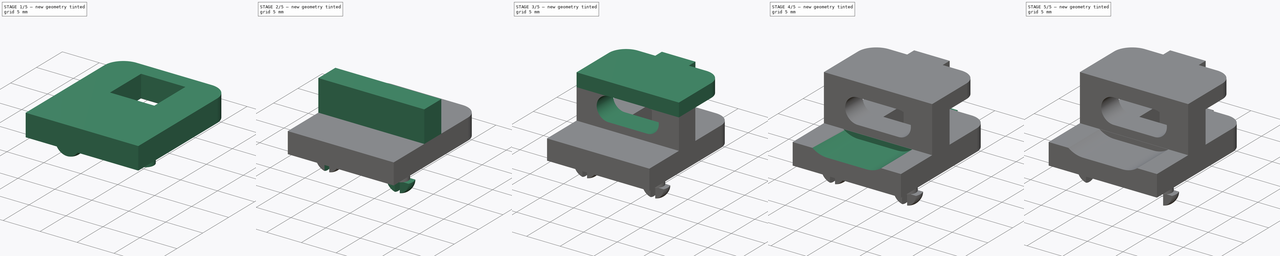
[diagram: build sequence overview — one tinted view per stage of 5, left to right]
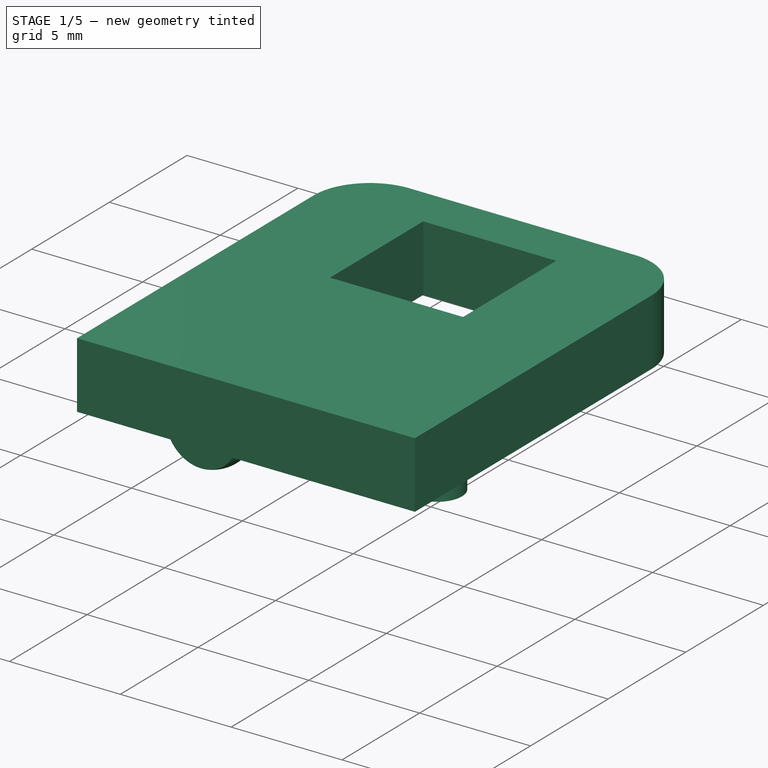
[diagram: stage 1 of 5 — iso view after this stage's code; geometry added in this stage tinted green]
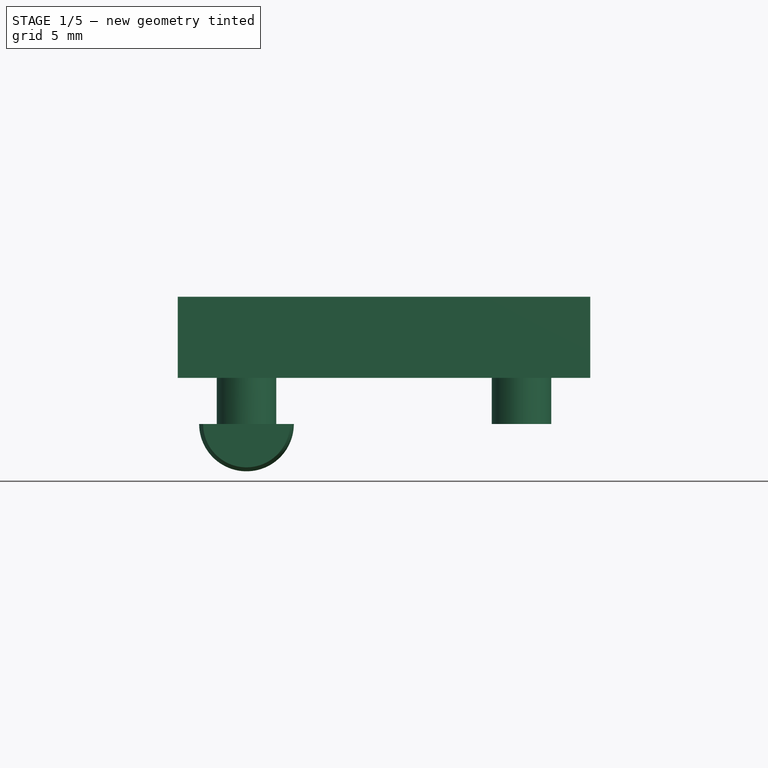
[diagram: stage 1 of 5 — front view after this stage's code; geometry added in this stage tinted green]
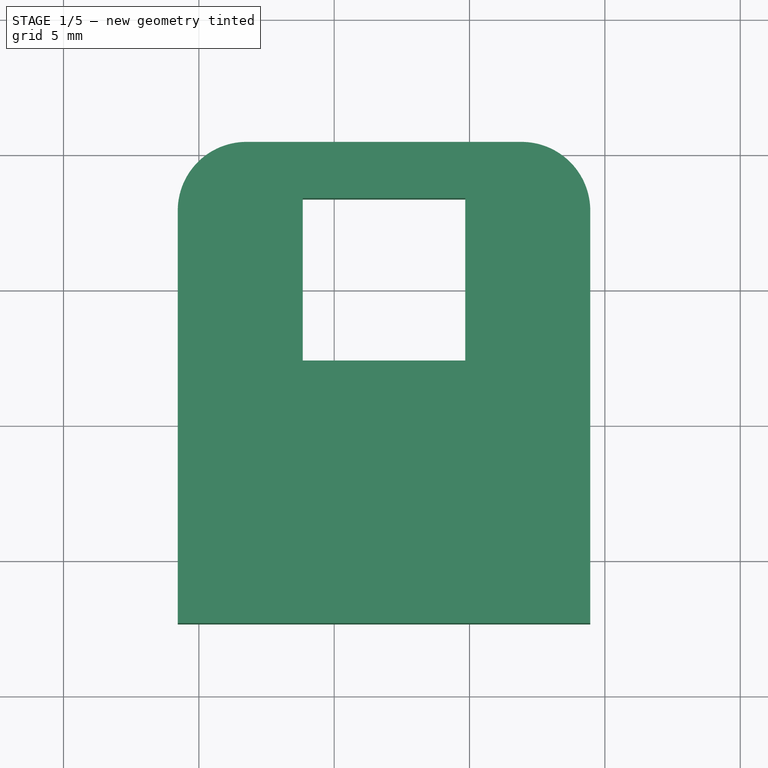
[diagram: stage 1 of 5 — top view after this stage's code; geometry added in this stage tinted green]
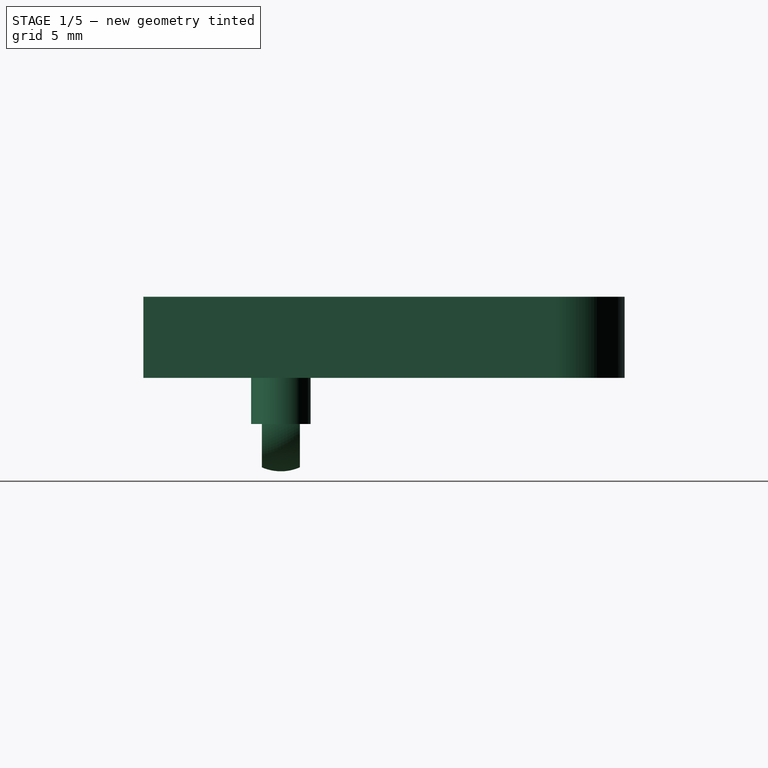
[diagram: stage 1 of 5 — right view after this stage's code; geometry added in this stage tinted green]
FCSTD DOCUMENT  (FreeCAD 0.21RUnknown)
Label: seeeduino_jig
License: All rights reserved
LicenseURL: https://en.wikipedia.org/wiki/All_rights_reserved
objects: Sketcher::SketchObject×13, PartDesign::Pad×7, PartDesign::Pocket×4, PartDesign::Revolution×2, PartDesign::Chamfer×2, Part::Feature×1, App::Part×1, PartDesign::ShapeBinder×1, PartDesign::Body×1
note: 46 computed .brp shape members not serialized (recipe doc carries the construction recipe); baked Part::Feature solids carry a one-line shape summary decoded from their .brp

FEATURE [Part::Feature] Part__Feature  label="seeeduino_debugging_jig_PCB"
  shape: bbox 15.24 x 25.4 x 1.6 mm, 16 faces (baked)
FEATURE [App::Part] seeeduino_debugging_jig_1  label="seeeduino_debugging_jig 1"
  Group = -> [Part__Feature]
  Origin = -> Origin001
FEATURE [PartDesign::ShapeBinder] ShapeBinder
  Support = -> [Part__Feature]
  TraceSupport = false
FEATURE [Sketcher::SketchObject] Sketch
  ExternalGeometry = -> [ShapeBinder]
  FullyConstrained = true
  MapMode = 5
  Placement = pos=(0,0,1.6) rot=(0,0,1;0rad)
  Support = -> [ShapeBinder]
  sketch-geometry (16):
    g0: GeomPoint X=109.22 Y=-72.39 Z=0
    g1: LineSegment StartX=111.76 StartY=-67.31 StartZ=0 EndX=109.22 EndY=-67.31 EndZ=0
    g2: LineSegment StartX=109.22 StartY=-72.39 StartZ=0 EndX=124.46 EndY=-72.39 EndZ=0
    g3: LineSegment StartX=113.84 StartY=-56.69 StartZ=0 EndX=119.84 EndY=-56.69 EndZ=0
    g4: LineSegment StartX=119.84 StartY=-56.69 StartZ=0 EndX=119.84 EndY=-62.69 EndZ=0
    g5: LineSegment StartX=119.84 StartY=-62.69 StartZ=0 EndX=113.84 EndY=-62.69 EndZ=0
    g6: LineSegment StartX=113.84 StartY=-62.69 StartZ=0 EndX=113.84 EndY=-56.69 EndZ=0
    g7: LineSegment StartX=118.11 StartY=-58.42 StartZ=0 EndX=115.57 EndY=-60.96 EndZ=0
    g8: LineSegment StartX=115.57 StartY=-58.42 StartZ=0 EndX=118.11 EndY=-60.96 EndZ=0
    g9: GeomPoint X=116.84 Y=-59.69 Z=0
    g10: LineSegment StartX=109.22 StartY=-67.31 StartZ=0 EndX=109.22 EndY=-57.15 EndZ=0
    g11: LineSegment StartX=124.46 StartY=-57.15 StartZ=0 EndX=124.46 EndY=-72.39 EndZ=0
    g12: ArcOfCircle CenterX=111.76 CenterY=-57.15 CenterZ=0 NormalX=0 NormalY=0 NormalZ=1 AngleXU=0 Radius=2.54 StartAngle=1.57079 EndAngle=3.14159
    g13: ArcOfCircle CenterX=121.92 CenterY=-57.15 CenterZ=0 NormalX=0 NormalY=0 NormalZ=1 AngleXU=0 Radius=2.54 StartAngle=3.01382e-07 EndAngle=1.5708
    g14: LineSegment StartX=109.22 StartY=-72.39 StartZ=0 EndX=109.22 EndY=-67.31 EndZ=0
    g15: LineSegment StartX=111.76 StartY=-54.61 StartZ=0 EndX=121.92 EndY=-54.61 EndZ=0
  constraints (37):
    c: PointOnObject(g0,g-3)
    c: Coincident(g1,g-4)
    c: Horizontal(g1)
    c: Symmetric(g1,g-3,g0)
    c: Coincident(g2,g0)
    c: PointOnObject(g2,g-9)
    c: Horizontal(g2)
    c: Coincident(g3,g4)
    c: Coincident(g4,g5)
    c: Coincident(g5,g6)
    c: Coincident(g6,g3)
    c: Horizontal(g3)
    c: Horizontal(g5)
    c: Vertical(g4)
    c: Vertical(g6)
    c: Coincident(g7,g-11)
    c: Coincident(g7,g-13)
    c: Coincident(g8,g-12)
    c: Coincident(g8,g-10)
    c: PointOnObject(g9,g8)
    c: PointOnObject(g9,g7)
    c: Symmetric(g3,g5,g9)
    c: DistanceX(g3,g3) = 6
    c: Equal(g3,g4)
    c: Coincident(g10,g1)
    c: Coincident(g10,g-8)
    c: Coincident(g11,g-9)
    c: Coincident(g11,g2)
    c: Coincident(g12,g-8)
    c: Coincident(g12,g10)
    c: Coincident(g13,g-6)
    c: Coincident(g13,g11)
    c: Coincident(g14,g2)
    c: Coincident(g14,g10)
    c: Coincident(g15,g12)
    c: Coincident(g15,g13)
    c: Tangent(g15,g-7)
FEATURE [PartDesign::Pad] Pad
  Direction = (0,0,1)
  Length = 3
  Length2 = 10
  Profile = -> Sketch
  ReferenceAxis = -> Sketch [N_Axis]
  Type = 0
FEATURE [Sketcher::SketchObject] Sketch001
  ExternalGeometry = -> [ShapeBinder]
  FullyConstrained = true
  MapMode = 5
  Placement = pos=(0,0,1.6) rot=(1,0,0;3.14159rad)
  Support = -> [Pad]
  sketch-geometry (2):
    g0: Circle CenterX=111.76 CenterY=67.31 CenterZ=0 NormalX=0 NormalY=0 NormalZ=1 AngleXU=0 Radius=1.1
    g1: Circle CenterX=121.92 CenterY=67.31 CenterZ=0 NormalX=0 NormalY=0 NormalZ=1 AngleXU=0 Radius=1.1
  constraints (4):
    c: Coincident(g0,g-3)
    c: Coincident(g1,g-4)
    c: Equal(g0,g-3)
    c: Equal(g1,g-4)
FEATURE [PartDesign::Pad] Pad001
  BaseFeature = -> Pad
  Direction = (0,0,-1)
  Length = 1.7
  Length2 = 10
  Profile = -> Sketch001
  ReferenceAxis = -> Sketch001 [N_Axis]
  Type = 0
FEATURE [Sketcher::SketchObject] Sketch002
  ExternalGeometry = -> [Pad001]
  FullyConstrained = true
  MapMode = 5
  Placement = pos=(0,0,-0.1) rot=(1,0,0;3.14159rad)
  Support = -> [Pad001]
  sketch-geometry (7):
    g0: ArcOfCircle CenterX=111.76 CenterY=67.31 CenterZ=0 NormalX=0 NormalY=0 NormalZ=1 AngleXU=0 Radius=1.75 StartAngle=2.73008 EndAngle=3.55311
    g1: ArcOfCircle CenterX=111.76 CenterY=67.31 CenterZ=0 NormalX=0 NormalY=0 NormalZ=1 AngleXU=0 Radius=1.75 StartAngle=5.87167 EndAngle=6.6947
    g2: LineSegment StartX=110.156 StartY=68.01 StartZ=0 EndX=111.76 EndY=68.01 EndZ=0
    g3: LineSegment StartX=111.76 StartY=68.01 StartZ=0 EndX=113.364 EndY=68.01 EndZ=0
    g4: LineSegment StartX=110.156 StartY=66.61 StartZ=0 EndX=111.76 EndY=66.61 EndZ=0
    g5: LineSegment StartX=111.76 StartY=66.61 StartZ=0 EndX=113.364 EndY=66.61 EndZ=0
    g6: LineSegment StartX=111.76 StartY=68.01 StartZ=0 EndX=111.76 EndY=66.61 EndZ=0
  constraints (18):
    c: Coincident(g0,g-3)
    c: Radius(g0) = 1.75
    c: Coincident(g1,g3)
    c: Coincident(g0,g2)
    c: Equal(g0,g1)
    c: Coincident(g0,g4)
    c: Coincident(g1,g5)
    c: Coincident(g0,g1)
    c: Coincident(g2,g3)
    c: Horizontal(g2)
    c: Horizontal(g3)
    c: Distance(g0,g2) = 0.7
    c: Coincident(g4,g5)
    c: Horizontal(g4)
    c: Coincident(g6,g2)
    c: Coincident(g6,g4)
    c: Symmetric(g0,g1,g4)
    c: Symmetric(g5,g3,g1)
FEATURE [PartDesign::Revolution] Revolution
  Angle = 180
  Axis = (-4.568e-13,1,0)
  Base = (111.76,-68.01,-0.1)
  BaseFeature = -> Pad001
  Profile = -> Sketch002
  ReferenceAxis = -> Sketch002 [Edge3]
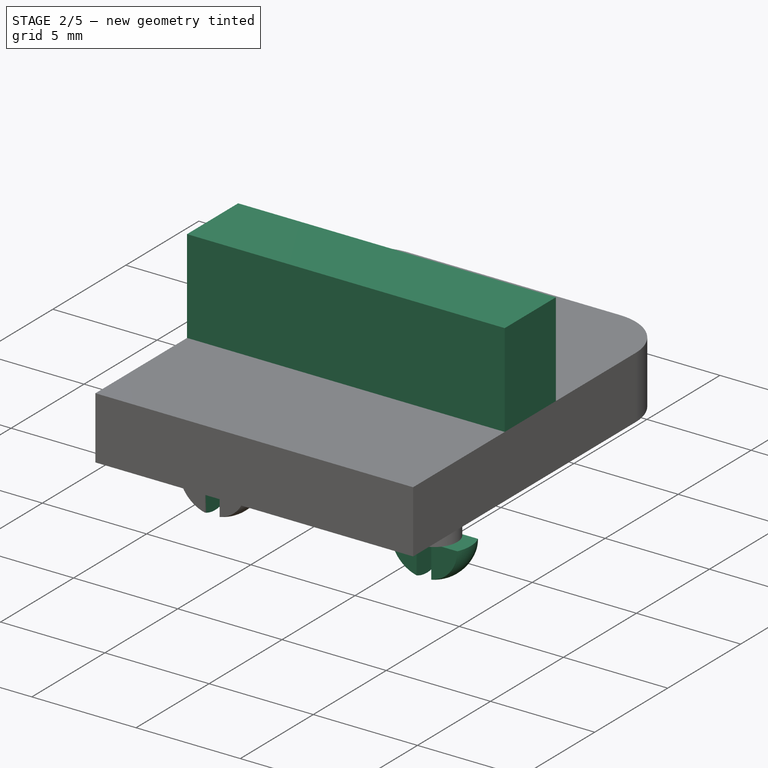
[diagram: stage 2 of 5 — iso view after this stage's code; geometry added in this stage tinted green]
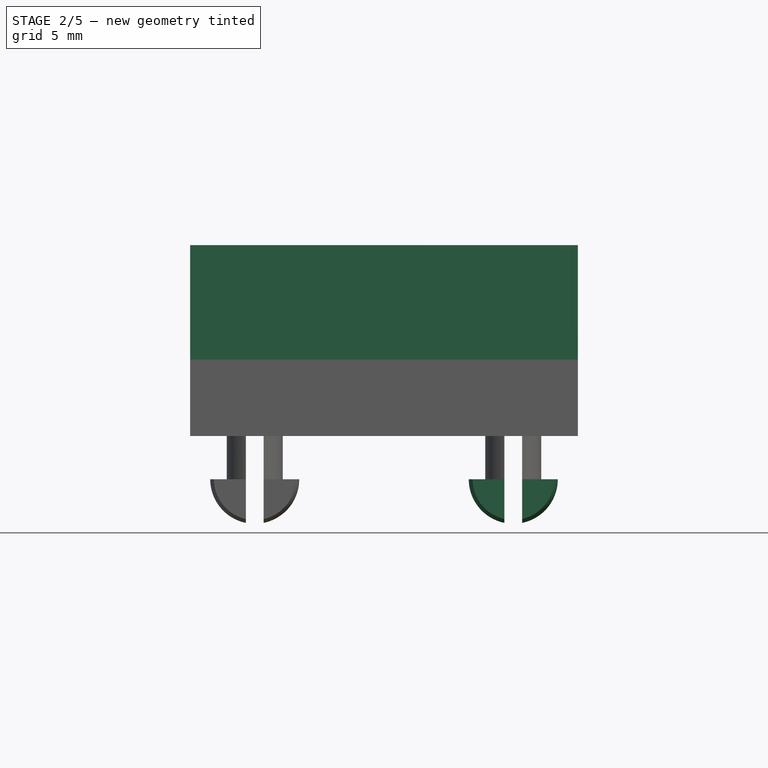
[diagram: stage 2 of 5 — front view after this stage's code; geometry added in this stage tinted green]
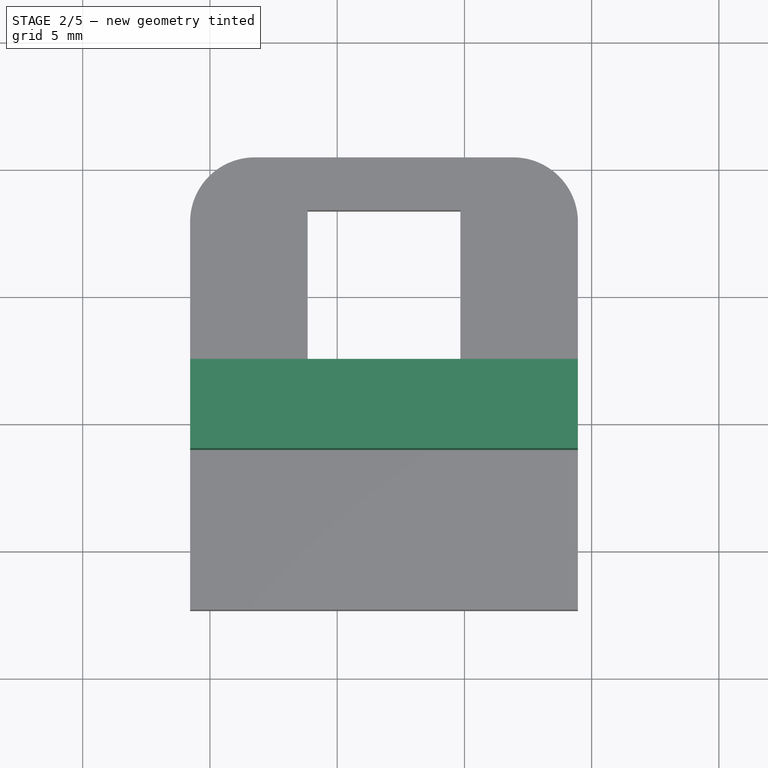
[diagram: stage 2 of 5 — top view after this stage's code; geometry added in this stage tinted green]
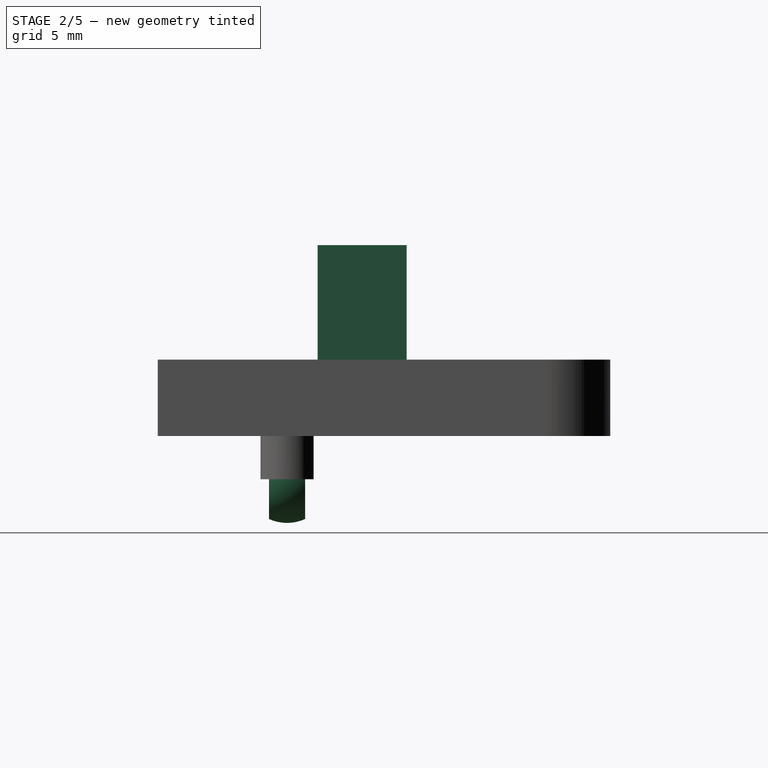
[diagram: stage 2 of 5 — right view after this stage's code; geometry added in this stage tinted green]
FEATURE [Sketcher::SketchObject] Sketch003
  ExternalGeometry = -> [Revolution]
  FullyConstrained = true
  MapMode = 5
  Placement = pos=(0,0,-0.1) rot=(1,0,0;3.14159rad)
  Support = -> [Revolution]
  sketch-geometry (7):
    g0: ArcOfCircle CenterX=121.92 CenterY=67.31 CenterZ=0 NormalX=0 NormalY=0 NormalZ=1 AngleXU=0 Radius=1.75 StartAngle=2.72383 EndAngle=3.55935
    g1: LineSegment StartX=120.321 StartY=68.02 StartZ=0 EndX=121.92 EndY=68.02 EndZ=0
    g2: LineSegment StartX=121.92 StartY=68.02 StartZ=0 EndX=123.519 EndY=68.02 EndZ=0
    g3: LineSegment StartX=123.519 StartY=66.6 StartZ=0 EndX=121.92 EndY=66.6 EndZ=0
    g4: LineSegment StartX=121.92 StartY=66.6 StartZ=0 EndX=120.321 EndY=66.6 EndZ=0
    g5: LineSegment StartX=121.92 StartY=68.02 StartZ=0 EndX=121.92 EndY=66.6 EndZ=0
    g6: ArcOfCircle CenterX=121.92 CenterY=67.31 CenterZ=0 NormalX=0 NormalY=0 NormalZ=1 AngleXU=0 Radius=1.75 StartAngle=5.86543 EndAngle=6.70095
  constraints (18):
    c: Coincident(g0,g-3)
    c: Radius(g0) = 1.75
    c: Coincident(g1,g2)
    c: Horizontal(g1)
    c: Coincident(g3,g4)
    c: Horizontal(g3)
    c: Horizontal(g4)
    c: Symmetric(g1,g2,g1)
    c: Symmetric(g3,g1,g0)
    c: Distance(g0,g2) = 0.71
    c: Coincident(g5,g1)
    c: Coincident(g5,g3)
    c: Coincident(g6,g2)
    c: Coincident(g0,g1)
    c: Equal(g0,g6)
    c: Coincident(g0,g4)
    c: Coincident(g6,g3)
    c: Coincident(g0,g6)
FEATURE [PartDesign::Revolution] Revolution001
  Angle = 180
  Axis = (7.206e-13,1,0)
  Base = (121.92,-68.02,-0.1)
  BaseFeature = -> Revolution
  Profile = -> Sketch003
  ReferenceAxis = -> Sketch003 [Edge3]
  Reversed = true
FEATURE [Sketcher::SketchObject] Sketch004
  ExternalGeometry = -> [Revolution001]
  FullyConstrained = true
  MapMode = 5
  Placement = pos=(0,0,-0.1) rot=(1,0,0;3.14159rad)
  Support = -> [Revolution001]
  sketch-geometry (10):
    g0: LineSegment StartX=111.41 StartY=68.41 StartZ=0 EndX=112.11 EndY=68.41 EndZ=0
    g1: LineSegment StartX=112.11 StartY=68.41 StartZ=0 EndX=112.11 EndY=66.21 EndZ=0
    g2: LineSegment StartX=112.11 StartY=66.21 StartZ=0 EndX=111.41 EndY=66.21 EndZ=0
    g3: LineSegment StartX=111.41 StartY=66.21 StartZ=0 EndX=111.41 EndY=68.41 EndZ=0
    g4: LineSegment StartX=110.911 StartY=68.01 StartZ=0 EndX=112.609 EndY=66.61 EndZ=0
    g5: LineSegment StartX=112.609 StartY=68.01 StartZ=0 EndX=110.911 EndY=66.61 EndZ=0
    g6: LineSegment StartX=121.57 StartY=68.41 StartZ=0 EndX=122.27 EndY=68.41 EndZ=0
    g7: LineSegment StartX=122.27 StartY=68.41 StartZ=0 EndX=122.27 EndY=66.21 EndZ=0
    g8: LineSegment StartX=122.27 StartY=66.21 StartZ=0 EndX=121.57 EndY=66.21 EndZ=0
    g9: LineSegment StartX=121.57 StartY=66.21 StartZ=0 EndX=121.57 EndY=68.41 EndZ=0
  constraints (26):
    c: Horizontal(g0)
    c: Coincident(g1,g0)
    c: Vertical(g1)
    c: Coincident(g2,g1)
    c: Horizontal(g2)
    c: Coincident(g3,g2)
    c: Coincident(g3,g0)
    c: Vertical(g3)
    c: Tangent(g0,g-3)
    c: Coincident(g4,g-3)
    c: Coincident(g4,g-6)
    c: Coincident(g5,g-3)
    c: Coincident(g5,g-6)
    c: Coincident(g6,g7)
    c: Coincident(g7,g8)
    c: Coincident(g8,g9)
    c: Coincident(g9,g6)
    c: Horizontal(g6)
    c: Horizontal(g8)
    c: Vertical(g7)
    c: Vertical(g9)
    c: Symmetric(g8,g6,g-5)
    c: Equal(g6,g0)
    c: Tangent(g6,g-4)
    c: Symmetric(g2,g0,g-6)
    c: DistanceX(g0,g0) = 0.7
FEATURE [PartDesign::Pocket] Pocket
  BaseFeature = -> Revolution001
  Direction = (0,0,1)
  Length = 1.7
  Length2 = 5
  Profile = -> Sketch004
  ReferenceAxis = -> Sketch004 [N_Axis]
  Type = 4
FEATURE [Sketcher::SketchObject] Sketch005
  ExternalGeometry = -> [ShapeBinder,Pocket]
  FullyConstrained = true
  MapMode = 5
  Placement = pos=(0,0,4.6) rot=(0,0,1;0rad)
  Support = -> [Pocket]
  sketch-geometry (4):
    g0: LineSegment StartX=109.22 StartY=-62.61 StartZ=0 EndX=124.46 EndY=-62.61 EndZ=0
    g1: LineSegment StartX=109.22 StartY=-66.11 StartZ=0 EndX=124.46 EndY=-66.11 EndZ=0
    g2: LineSegment StartX=124.46 StartY=-62.61 StartZ=0 EndX=124.46 EndY=-66.11 EndZ=0
    g3: LineSegment StartX=109.22 StartY=-62.61 StartZ=0 EndX=109.22 EndY=-66.11 EndZ=0
  constraints (12):
    c: Horizontal(g0)
    c: Distance(g-3,g0) = 1.65
    c: PointOnObject(g0,g-5)
    c: PointOnObject(g0,g-6)
    c: PointOnObject(g1,g-5)
    c: PointOnObject(g1,g-6)
    c: Horizontal(g1)
    c: Coincident(g2,g0)
    c: Coincident(g2,g1)
    c: Coincident(g3,g0)
    c: Coincident(g3,g1)
    c: DistanceY(g2,g2) = 3.5
FEATURE [PartDesign::Pad] Pad002
  BaseFeature = -> Pocket
  Direction = (0,0,1)
  Length = 4.5
  Length2 = 10
  Profile = -> Sketch005
  ReferenceAxis = -> Sketch005 [N_Axis]
  Type = 0
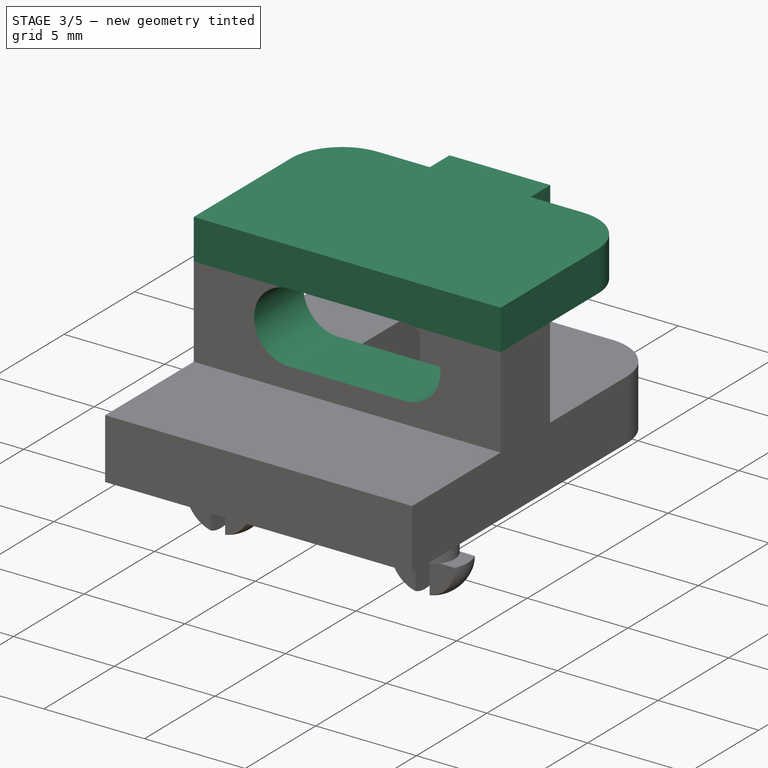
[diagram: stage 3 of 5 — iso view after this stage's code; geometry added in this stage tinted green]
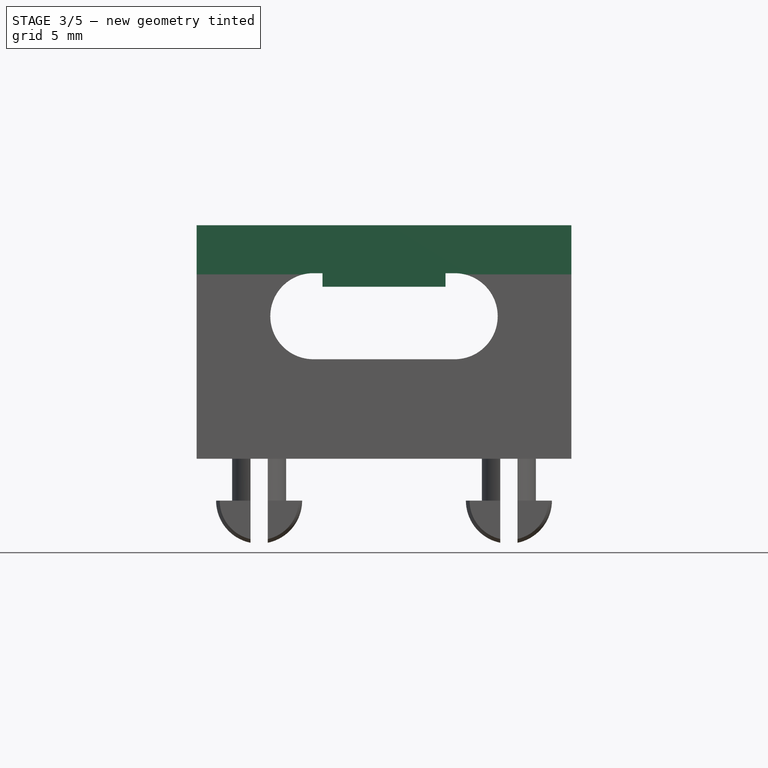
[diagram: stage 3 of 5 — front view after this stage's code; geometry added in this stage tinted green]
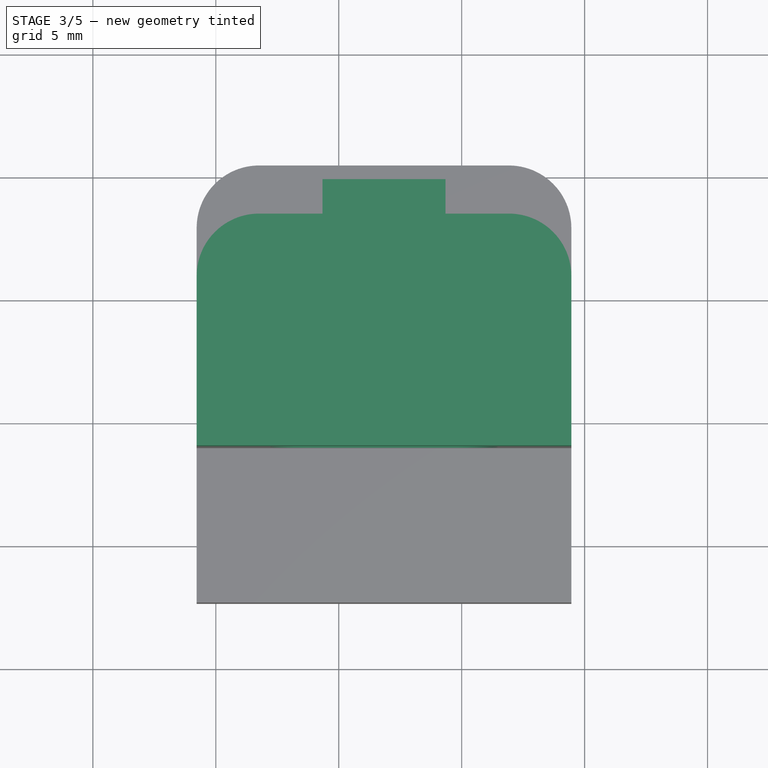
[diagram: stage 3 of 5 — top view after this stage's code; geometry added in this stage tinted green]
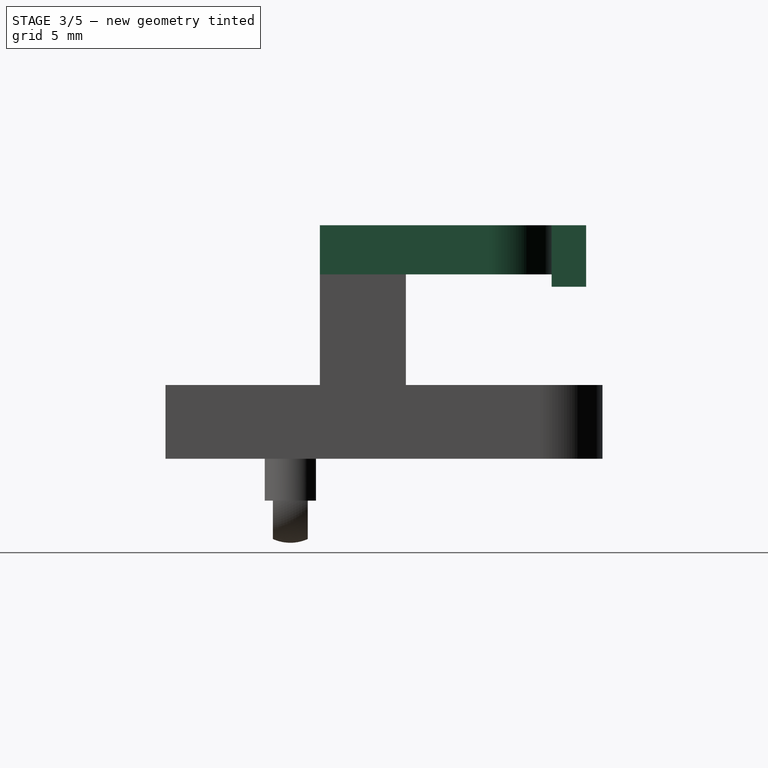
[diagram: stage 3 of 5 — right view after this stage's code; geometry added in this stage tinted green]
FEATURE [Sketcher::SketchObject] Sketch006
  ExternalGeometry = -> [Pad002]
  FullyConstrained = true
  MapMode = 5
  Placement = pos=(0,-66.11,0) rot=(1,0,0;1.5708rad)
  Support = -> [Pad002]
  sketch-geometry (6):
    g0: ArcOfCircle CenterX=113.965 CenterY=7.4 CenterZ=0 NormalX=0 NormalY=0 NormalZ=1 AngleXU=0 Radius=1.75 StartAngle=1.5708 EndAngle=4.71239
    g1: ArcOfCircle CenterX=119.715 CenterY=7.4 CenterZ=0 NormalX=0 NormalY=0 NormalZ=1 AngleXU=0 Radius=1.75 StartAngle=4.71239 EndAngle=7.85398
    g2: LineSegment StartX=113.965 StartY=5.65 StartZ=0 EndX=119.715 EndY=5.65 EndZ=0
    g3: LineSegment StartX=119.715 StartY=9.15 StartZ=0 EndX=113.965 EndY=9.15 EndZ=0
    g4: LineSegment StartX=113.965 StartY=7.4 StartZ=0 EndX=109.22 EndY=7.4 EndZ=0
    g5: LineSegment StartX=119.715 StartY=7.4 StartZ=0 EndX=124.46 EndY=7.4 EndZ=0
  constraints (17):
    c: Tangent(g0,g2) = -1.5708
    c: Tangent(g2,g1) = -1.5708
    c: Tangent(g1,g3) = -1.5708
    c: Tangent(g3,g0) = -1.5708
    c: Equal(g0,g1)
    c: Horizontal(g2)
    c: DistanceY(g1,g1) = 3.5
    c: Radius(g1) = 1.75
    c: DistanceY(g-4,g0) = 2.8
    c: Coincident(g4,g0)
    c: PointOnObject(g4,g-4)
    c: Horizontal(g4)
    c: Coincident(g5,g1)
    c: PointOnObject(g5,g-5)
    c: Horizontal(g5)
    c: Equal(g5,g4)
    c: DistanceX(g0,g1) = 5.75
FEATURE [Sketcher::SketchObject] Sketch007
  ExternalGeometry = -> [Pad002]
  FullyConstrained = true
  MapMode = 5
  Placement = pos=(0,0,9.1) rot=(0,0,1;0rad)
  Support = -> [Pad002]
  sketch-geometry (16):
    g0: ArcOfCircle CenterX=111.76 CenterY=-59.22 CenterZ=0 NormalX=0 NormalY=0 NormalZ=1 AngleXU=0 Radius=2.54 StartAngle=1.5708 EndAngle=3.14159
    g1: ArcOfCircle CenterX=121.92 CenterY=-59.22 CenterZ=0 NormalX=0 NormalY=0 NormalZ=1 AngleXU=0 Radius=2.54 StartAngle=0 EndAngle=1.5708
    g2: LineSegment StartX=109.22 StartY=-62.61 StartZ=0 EndX=109.22 EndY=-59.22 EndZ=0
    g3: LineSegment StartX=111.76 StartY=-56.68 StartZ=0 EndX=121.92 EndY=-56.68 EndZ=0
    g4: LineSegment StartX=124.46 StartY=-59.22 StartZ=0 EndX=124.46 EndY=-62.61 EndZ=0
    g5: LineSegment StartX=109.22 StartY=-59.22 StartZ=0 EndX=111.76 EndY=-59.22 EndZ=0
    g6: LineSegment StartX=111.76 StartY=-57.15 StartZ=0 EndX=109.22 EndY=-57.15 EndZ=0
    g7: LineSegment StartX=111.76 StartY=-54.61 StartZ=0 EndX=111.76 EndY=-57.15 EndZ=0
    g8: LineSegment StartX=111.76 StartY=-56.68 StartZ=0 EndX=111.76 EndY=-59.22 EndZ=0
    g9: LineSegment StartX=121.92 StartY=-59.22 StartZ=0 EndX=124.46 EndY=-59.22 EndZ=0
    g10: LineSegment StartX=124.46 StartY=-57.15 StartZ=0 EndX=121.92 EndY=-57.15 EndZ=0
    g11: LineSegment StartX=121.92 StartY=-57.15 StartZ=0 EndX=121.92 EndY=-54.61 EndZ=0
    g12: LineSegment StartX=121.92 StartY=-56.68 StartZ=0 EndX=121.92 EndY=-59.22 EndZ=0
    g13: LineSegment StartX=109.22 StartY=-62.61 StartZ=0 EndX=109.22 EndY=-66.11 EndZ=0
    g14: LineSegment StartX=109.22 StartY=-66.11 StartZ=0 EndX=124.46 EndY=-66.11 EndZ=0
    g15: LineSegment StartX=124.46 StartY=-66.11 StartZ=0 EndX=124.46 EndY=-62.61 EndZ=0
  constraints (38):
    c: Coincident(g2,g-4)
    c: Coincident(g2,g0)
    c: Coincident(g3,g0)
    c: Coincident(g3,g1)
    c: Horizontal(g3)
    c: Coincident(g4,g1)
    c: Coincident(g4,g-4)
    c: Vertical(g4)
    c: Vertical(g2)
    c: Coincident(g5,g0)
    c: Coincident(g5,g0)
    c: Coincident(g6,g-5)
    c: Coincident(g6,g-5)
    c: Horizontal(g5)
    c: Distance(g1,g-4) = 5.93
    c: Coincident(g7,g-5)
    c: Coincident(g7,g6)
    c: Coincident(g8,g0)
    c: Coincident(g8,g0)
    c: Equal(g8,g7)
    c: Vertical(g8)
    c: Coincident(g9,g1)
    c: Coincident(g9,g1)
    c: Coincident(g10,g-6)
    c: Coincident(g10,g-6)
    c: Coincident(g11,g10)
    c: Coincident(g11,g-6)
    c: Coincident(g12,g1)
    c: Coincident(g12,g1)
    c: Equal(g9,g10)
    c: Horizontal(g9)
    c: Vertical(g12)
    c: Coincident(g13,g2)
    c: Coincident(g13,g-3)
    c: Coincident(g14,g13)
    c: Coincident(g14,g-3)
    c: Coincident(g15,g14)
    c: Coincident(g15,g4)
FEATURE [PartDesign::Pad] Pad003
  BaseFeature = -> Pad002
  Direction = (0,0,1)
  Length = 2
  Length2 = 10
  Profile = -> Sketch007
  ReferenceAxis = -> Sketch007 [N_Axis]
  Type = 0
FEATURE [PartDesign::Pocket] Pocket001
  BaseFeature = -> Pad003
  Direction = (0,1,-2e-16)
  Length = 50
  Length2 = 5
  Profile = -> Sketch006
  ReferenceAxis = -> Sketch006 [N_Axis]
  Type = 0
FEATURE [Sketcher::SketchObject] Sketch008
  ExternalGeometry = -> [Pocket001]
  FullyConstrained = true
  MapMode = 5
  Placement = pos=(0,-56.68,0) rot=(0,0.707107,0.707107;3.14159rad)
  Support = -> [Pocket001]
  sketch-geometry (6):
    g0: LineSegment StartX=-119.34 StartY=11.1 StartZ=0 EndX=-114.34 EndY=11.1 EndZ=0
    g1: LineSegment StartX=-114.34 StartY=11.1 StartZ=0 EndX=-114.34 EndY=8.6 EndZ=0
    g2: LineSegment StartX=-114.34 StartY=8.6 StartZ=0 EndX=-119.34 EndY=8.6 EndZ=0
    g3: LineSegment StartX=-119.34 StartY=8.6 StartZ=0 EndX=-119.34 EndY=11.1 EndZ=0
    g4: LineSegment StartX=-121.92 StartY=11.1 StartZ=0 EndX=-119.34 EndY=11.1 EndZ=0
    g5: LineSegment StartX=-114.34 StartY=11.1 StartZ=0 EndX=-111.76 EndY=11.1 EndZ=0
  constraints (16):
    c: Coincident(g0,g1)
    c: Coincident(g1,g2)
    c: Coincident(g2,g3)
    c: Coincident(g3,g0)
    c: Horizontal(g0)
    c: Horizontal(g2)
    c: Vertical(g1)
    c: Vertical(g3)
    c: PointOnObject(g0,g-4)
    c: Coincident(g4,g-4)
    c: Coincident(g4,g0)
    c: Coincident(g5,g0)
    c: Coincident(g5,g-5)
    c: Equal(g4,g5)
    c: DistanceX(g0,g0) = 5
    c: DistanceY(g1,g-5) = 0.5
FEATURE [PartDesign::Pad] Pad004
  BaseFeature = -> Pocket001
  Direction = (0,1,-2e-16)
  Length = 1.4
  Length2 = 10
  Profile = -> Sketch008
  ReferenceAxis = -> Sketch008 [N_Axis]
  Type = 0
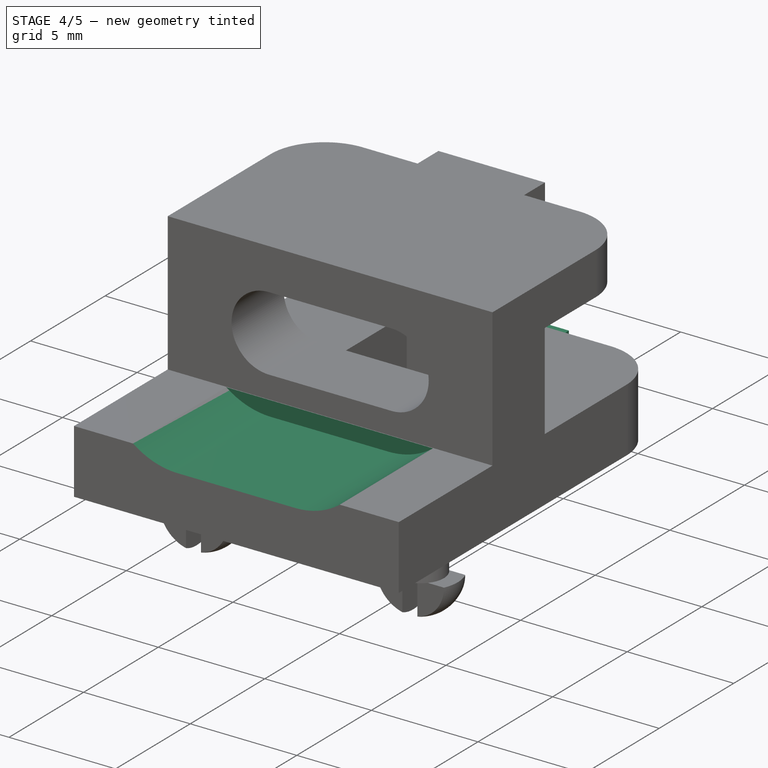
[diagram: stage 4 of 5 — iso view after this stage's code; geometry added in this stage tinted green]
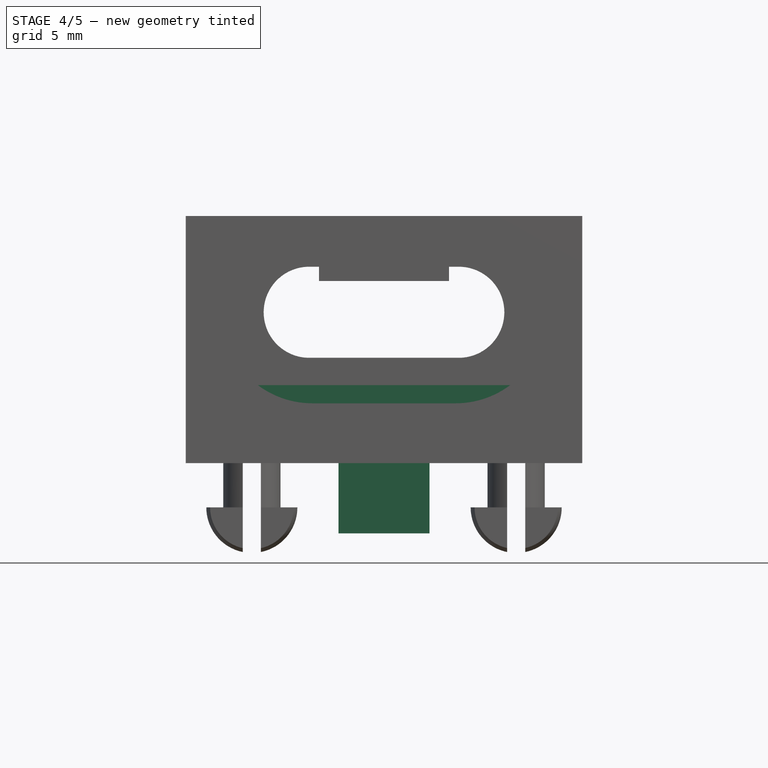
[diagram: stage 4 of 5 — front view after this stage's code; geometry added in this stage tinted green]
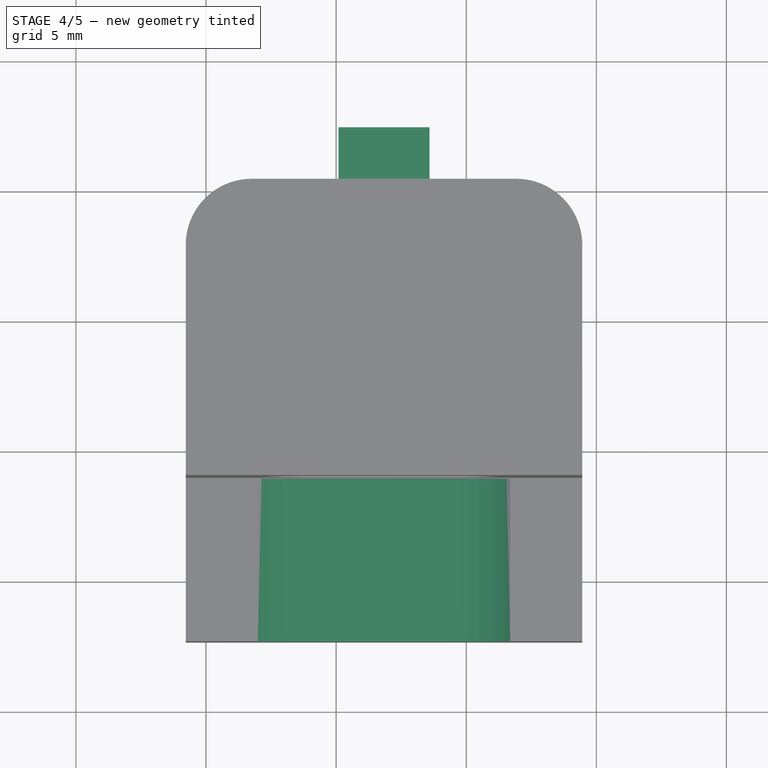
[diagram: stage 4 of 5 — top view after this stage's code; geometry added in this stage tinted green]
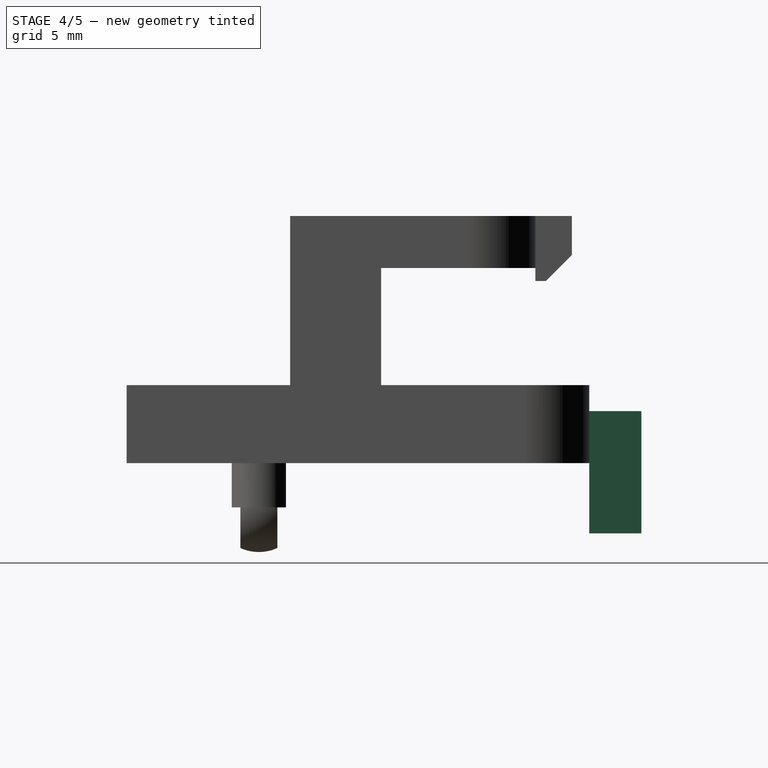
[diagram: stage 4 of 5 — right view after this stage's code; geometry added in this stage tinted green]
FEATURE [PartDesign::Chamfer] Chamfer
  Angle = 45
  Base = -> Pad004 [Edge216]
  BaseFeature = -> Pad004
  ChamferType = 0
  FlipDirection = false
  Size = 1
  Size2 = 1
  SupportTransform = false
  UseAllEdges = false
FEATURE [Sketcher::SketchObject] Sketch009
  ExternalGeometry = -> [Chamfer]
  FullyConstrained = true
  MapMode = 5
  Placement = pos=(0,-72.39,0) rot=(1,0,0;1.5708rad)
  Support = -> [Chamfer]
  sketch-geometry (6):
    g0: ArcOfCircle CenterX=114.09 CenterY=7.4 CenterZ=0 NormalX=0 NormalY=0 NormalZ=1 AngleXU=0 Radius=3.5 StartAngle=1.5708 EndAngle=4.71239
    g1: ArcOfCircle CenterX=119.59 CenterY=7.4 CenterZ=0 NormalX=0 NormalY=0 NormalZ=1 AngleXU=0 Radius=3.5 StartAngle=4.71239 EndAngle=7.85398
    g2: LineSegment StartX=114.09 StartY=3.9 StartZ=0 EndX=119.59 EndY=3.9 EndZ=0
    g3: LineSegment StartX=119.59 StartY=10.9 StartZ=0 EndX=114.09 EndY=10.9 EndZ=0
    g4: LineSegment StartX=114.09 StartY=7.4 StartZ=0 EndX=116.84 EndY=7.4 EndZ=0
    g5: LineSegment StartX=116.84 StartY=7.4 StartZ=0 EndX=119.59 EndY=7.4 EndZ=0
  constraints (15):
    c: Tangent(g0,g2) = -1.5708
    c: Tangent(g2,g1) = -1.5708
    c: Tangent(g1,g3) = -1.5708
    c: Tangent(g3,g0) = -1.5708
    c: Equal(g0,g1)
    c: DistanceY(g1,g1) = 7
    c: Coincident(g4,g0)
    c: Coincident(g5,g1)
    c: Radius(g1) = 3.5
    c: DistanceX(g0,g1) = 5.5
    c: Coincident(g4,g5)
    c: Equal(g4,g5)
    c: Symmetric(g-4,g-3,g4)
    c: Horizontal(g4)
    c: Horizontal(g5)
FEATURE [PartDesign::Pocket] Pocket002
  BaseFeature = -> Chamfer
  Direction = (0,1,-2e-16)
  Length = 6.25
  Length2 = 5
  Profile = -> Sketch009
  ReferenceAxis = -> Sketch009 [N_Axis]
  Type = 0
FEATURE [Sketcher::SketchObject] Sketch010
  ExternalGeometry = -> [Pocket002]
  FullyConstrained = true
  MapMode = 5
  Placement = pos=(7.65e-14,-54.61,0) rot=(0,0.707107,0.707107;3.14159rad)
  Support = -> [Pocket002]
  sketch-geometry (8):
    g0: LineSegment StartX=-118.59 StartY=3.6 StartZ=0 EndX=-115.09 EndY=3.6 EndZ=0
    g1: LineSegment StartX=-115.09 StartY=3.6 StartZ=0 EndX=-115.09 EndY=-1.1 EndZ=0
    g2: LineSegment StartX=-118.59 StartY=-1.1 StartZ=0 EndX=-118.59 EndY=3.6 EndZ=0
    g3: GeomPoint X=-118.59 Y=1.6 Z=0
    g4: GeomPoint X=-115.09 Y=1.6 Z=0
    g5: LineSegment StartX=-121.92 StartY=1.6 StartZ=0 EndX=-118.59 EndY=1.6 EndZ=0
    g6: LineSegment StartX=-115.09 StartY=1.6 StartZ=0 EndX=-111.76 EndY=1.6 EndZ=0
    g7: LineSegment StartX=-118.59 StartY=-1.1 StartZ=0 EndX=-115.09 EndY=-1.1 EndZ=0
  constraints (20):
    c: Coincident(g0,g1)
    c: Coincident(g2,g0)
    c: Horizontal(g0)
    c: Vertical(g1)
    c: Vertical(g2)
    c: Distance(g0,g-3) = 2
    c: PointOnObject(g3,g2)
    c: PointOnObject(g3,g-3)
    c: PointOnObject(g4,g1)
    c: PointOnObject(g4,g-3)
    c: Coincident(g5,g-3)
    c: Coincident(g5,g3)
    c: Coincident(g6,g4)
    c: Coincident(g6,g-3)
    c: Equal(g6,g5)
    c: DistanceX(g0,g0) = 3.5
    c: Coincident(g7,g2)
    c: Coincident(g7,g1)
    c: Horizontal(g7)
    c: Distance(g1,g-3) = 2.7
FEATURE [PartDesign::Pad] Pad005
  BaseFeature = -> Pocket002
  Direction = (-1.4e-15,1,-2e-16)
  Length = 2
  Length2 = 10
  Profile = -> Sketch010
  ReferenceAxis = -> Sketch010 [N_Axis]
  Type = 0
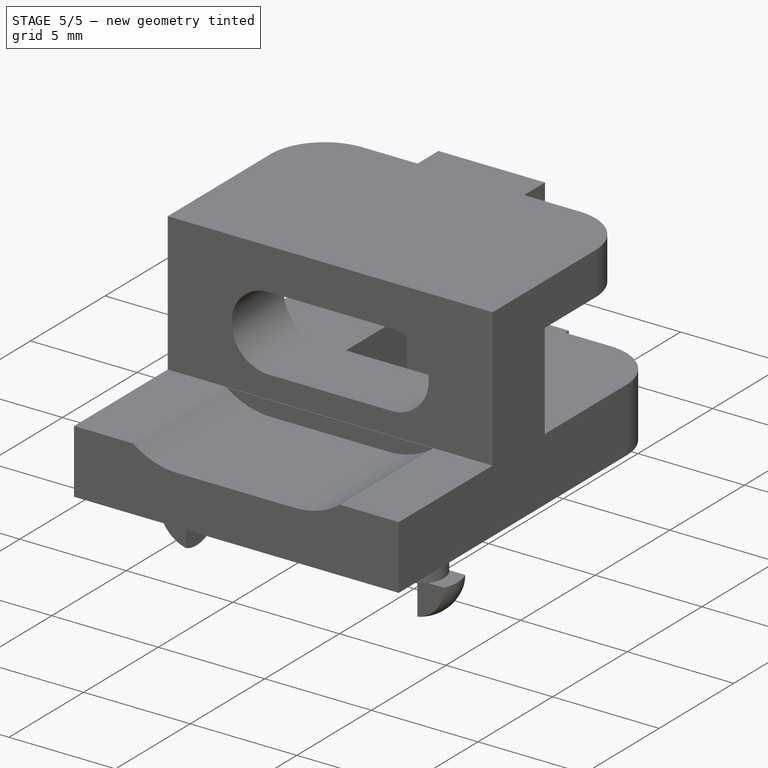
[diagram: stage 5 of 5 — iso view after this stage's code; geometry added in this stage tinted green]
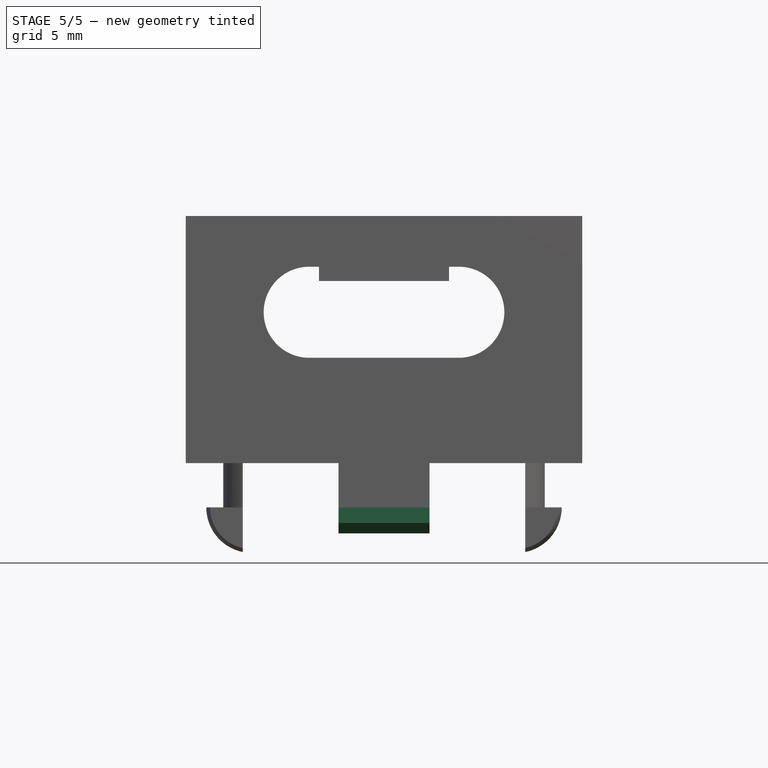
[diagram: stage 5 of 5 — front view after this stage's code; geometry added in this stage tinted green]
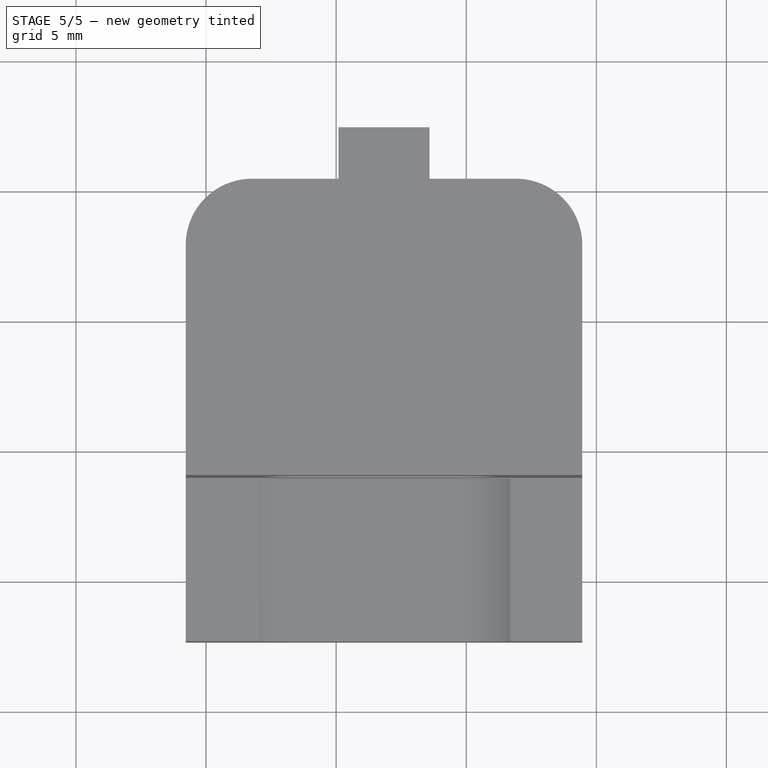
[diagram: stage 5 of 5 — top view after this stage's code; geometry added in this stage tinted green]
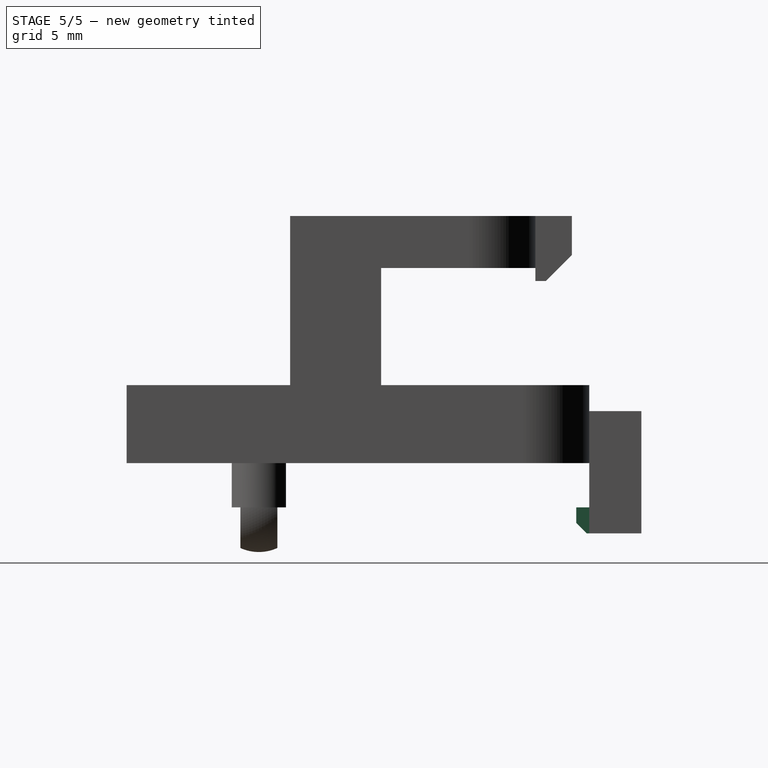
[diagram: stage 5 of 5 — right view after this stage's code; geometry added in this stage tinted green]
FEATURE [Sketcher::SketchObject] Sketch011
  ExternalGeometry = -> [Pad005]
  FullyConstrained = true
  MapMode = 5
  Placement = pos=(0,-54.61,0) rot=(1,0,0;1.5708rad)
  Support = -> [Pad005]
  sketch-geometry (4):
    g0: LineSegment StartX=115.09 StartY=-0.1 StartZ=0 EndX=118.59 EndY=-0.1 EndZ=0
    g1: LineSegment StartX=118.59 StartY=-1.1 StartZ=0 EndX=118.59 EndY=-0.1 EndZ=0
    g2: LineSegment StartX=118.59 StartY=-1.1 StartZ=0 EndX=115.09 EndY=-1.1 EndZ=0
    g3: LineSegment StartX=115.09 StartY=-1.1 StartZ=0 EndX=115.09 EndY=-0.1 EndZ=0
  constraints (10):
    c: PointOnObject(g0,g-3)
    c: PointOnObject(g0,g-5)
    c: Horizontal(g0)
    c: Coincident(g1,g-5)
    c: Coincident(g1,g0)
    c: Coincident(g2,g1)
    c: Coincident(g2,g-4)
    c: Coincident(g3,g2)
    c: Coincident(g3,g0)
    c: Distance(g0,g-5) = 1.7
FEATURE [PartDesign::Pad] Pad006
  BaseFeature = -> Pad005
  Direction = (0,-1,2e-16)
  Length = 0.5
  Length2 = 10
  Profile = -> Sketch011
  ReferenceAxis = -> Sketch011 [N_Axis]
  Type = 0
FEATURE [PartDesign::Chamfer] Chamfer001
  Angle = 45
  Base = -> Pad006 [Edge250]
  BaseFeature = -> Pad006
  ChamferType = 0
  FlipDirection = false
  Size = 0.4
  Size2 = 1
  SupportTransform = false
  UseAllEdges = false
FEATURE [Sketcher::SketchObject] Sketch012
  ExternalGeometry = -> [Chamfer001]
  FullyConstrained = true
  MapMode = 5
  Placement = pos=(0,0,1.6) rot=(1,0,0;3.14159rad)
  Support = -> [Chamfer001]
  sketch-geometry (4):
    g0: LineSegment StartX=111.41 StartY=68.41 StartZ=0 EndX=122.27 EndY=68.41 EndZ=0
    g1: LineSegment StartX=122.27 StartY=68.41 StartZ=0 EndX=122.27 EndY=66.21 EndZ=0
    g2: LineSegment StartX=122.27 StartY=66.21 StartZ=0 EndX=111.41 EndY=66.21 EndZ=0
    g3: LineSegment StartX=111.41 StartY=66.21 StartZ=0 EndX=111.41 EndY=68.41 EndZ=0
  constraints (10):
    c: Coincident(g0,g1)
    c: Coincident(g1,g2)
    c: Coincident(g2,g3)
    c: Coincident(g3,g0)
    c: Horizontal(g0)
    c: Horizontal(g2)
    c: Vertical(g1)
    c: Vertical(g3)
    c: Coincident(g0,g-3)
    c: Coincident(g1,g-4)
FEATURE [PartDesign::Pocket] Pocket003
  BaseFeature = -> Chamfer001
  Direction = (0,0,1)
  Length = 0
  Length2 = 5
  Profile = -> Sketch012
  ReferenceAxis = -> Sketch012 [N_Axis]
  Type = 4
FEATURE [PartDesign::Body] Body
  Group = -> [ShapeBinder,Sketch,Pad,Sketch001,Pad001,Sketch002,Revolution,Sketch003,Revolution001,Sketch004,Pocket,Sketch005,Pad002,Sketch006,Sketch007,Pad003,Pocket001,Sketch008,Pad004,Chamfer,Sketch009,Pocket002,Sketch010,Pad005,Sketch011,Pad006,Chamfer001,Sketch012,Pocket003]
  Origin = -> Origin
  Tip = -> Pocket003
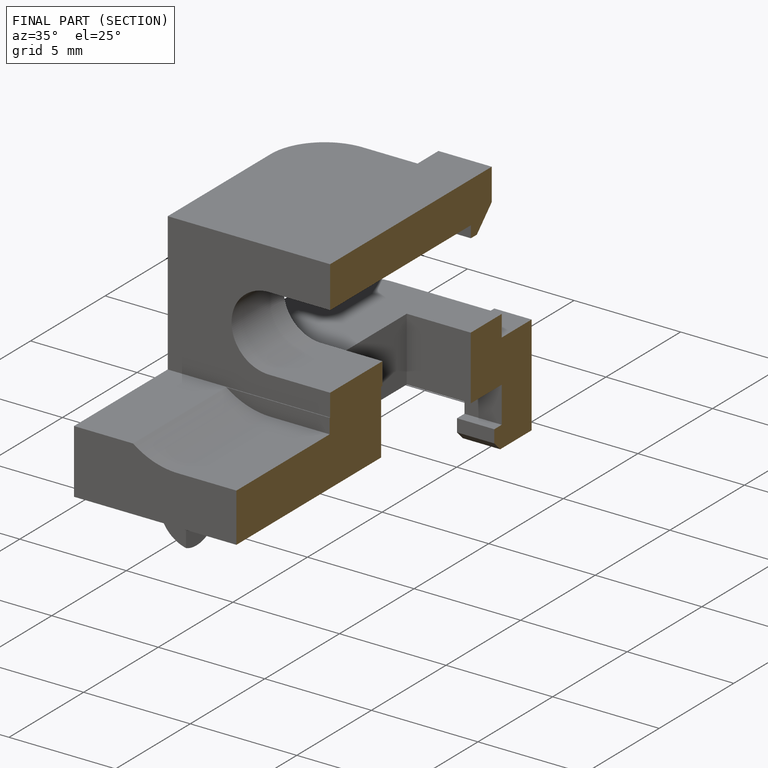
[diagram: finished part — half-section view (interior)]
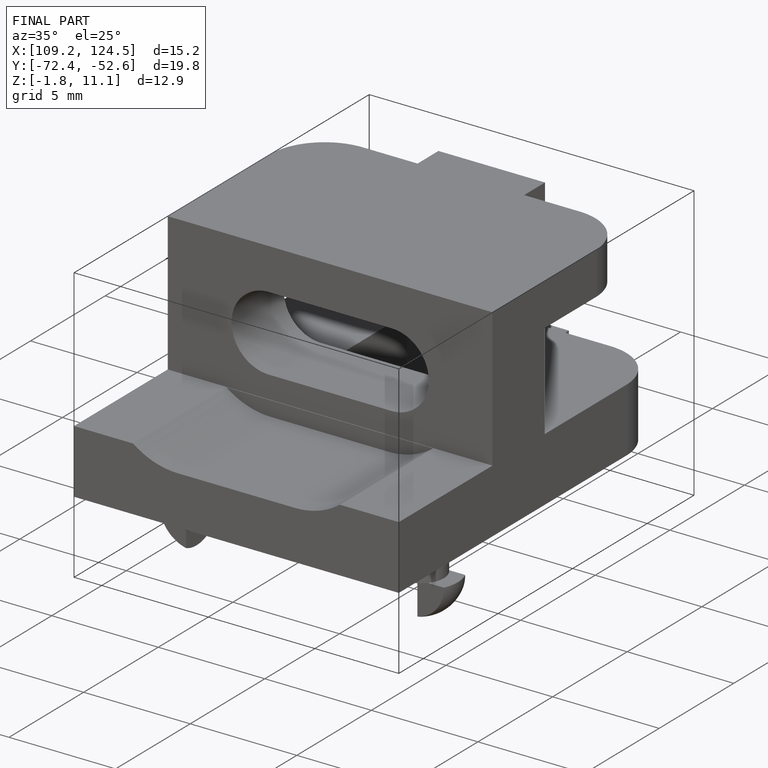
[diagram: finished part — iso view with bounding-box wireframe]
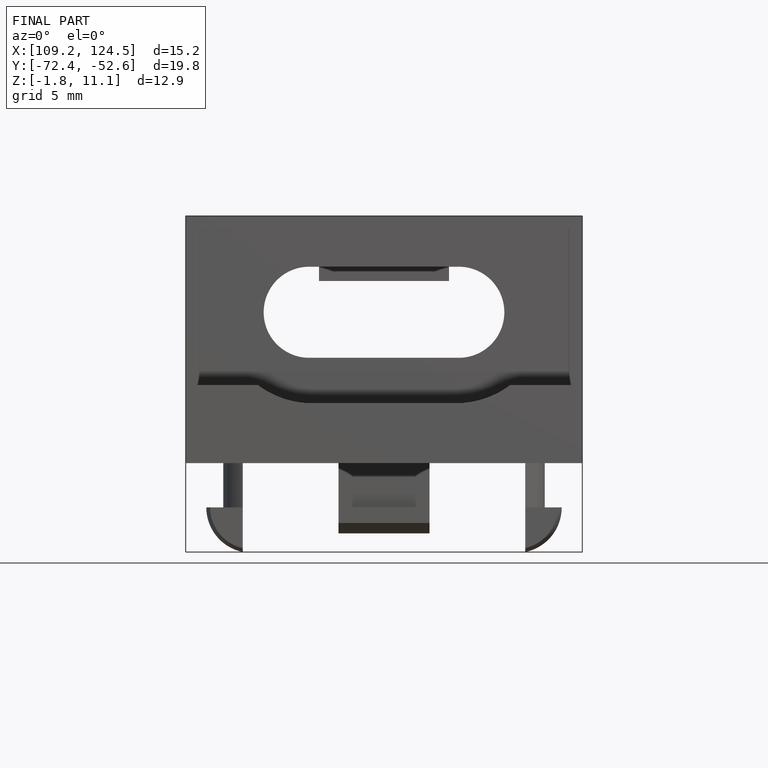
[diagram: finished part — front view with bounding-box wireframe]
